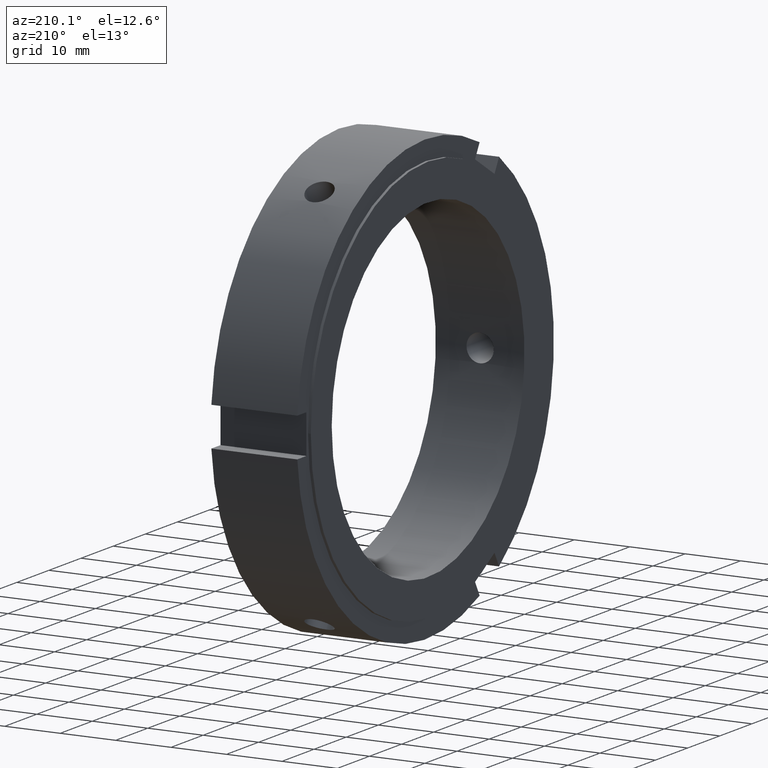
[diagram: clean part render]
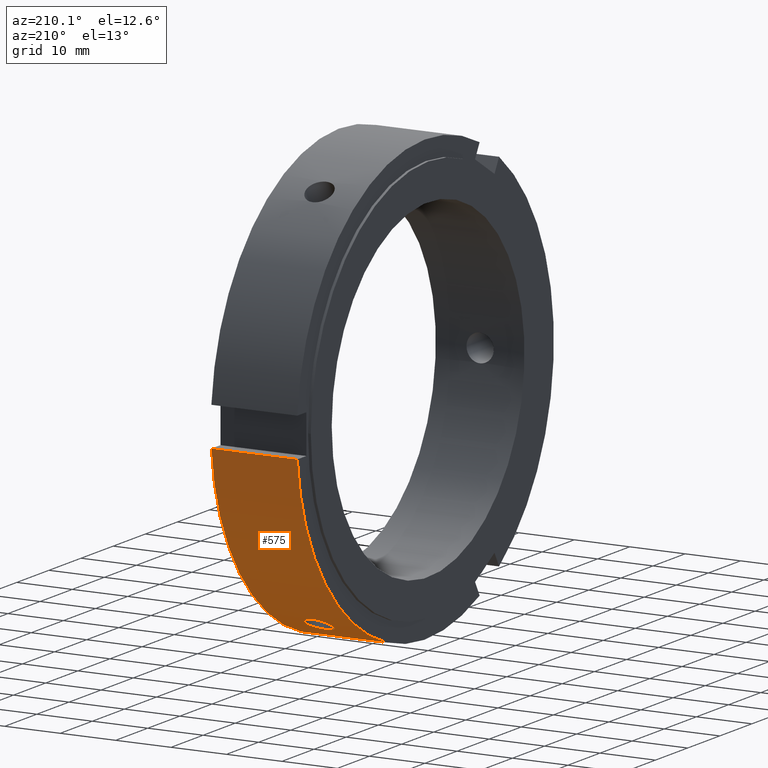
[diagram: same view with one face highlighted and labeled with its STEP entity id]
A machine part, auxiliary view. The second image highlights one B-rep face of the part: STEP entity #575.
In plain terms, the highlighted cylindrical surface (partial cylindrical patch) has radius 40 mm, axis along (1, 0, 0).
Its self-contained STEP definition (entity closure, byte-faithful):
#113=CARTESIAN_POINT('',(0.499999999999989,-16.892201477651263,-36.258151210982007));
#114=VERTEX_POINT('',#113);
#123=CARTESIAN_POINT('',(15.999999999999993,-16.892201477651266,-36.258151210982021));
#124=VERTEX_POINT('',#123);
#125=CARTESIAN_POINT('',(15.999999999999993,-16.892201477651263,-36.258151210982007));
#126=DIRECTION('',(-1.0,0.0,0.0));
#127=VECTOR('',#126,15.500000000000004);
#128=LINE('',#125,#127);
#129=EDGE_CURVE('',#124,#114,#128,.T.);
#365=CARTESIAN_POINT('',(7.999999999999991,17.833064411798404,-35.804773615883249));
#366=VERTEX_POINT('',#365);
#367=CARTESIAN_POINT('',(7.999999999999993,17.833064411798411,-35.804773615883249));
#368=CARTESIAN_POINT('',(8.308778307394176,17.833064411798411,-35.804773615883249));
#369=CARTESIAN_POINT('',(8.638084961426575,17.888495554433270,-35.777332465287543));
#370=CARTESIAN_POINT('',(9.243785509007932,18.112936927948208,-35.664230082129677));
#371=CARTESIAN_POINT('',(9.520186009215443,18.281840500402712,-35.578392670325542));
#372=CARTESIAN_POINT('',(9.956657928490522,18.669329895596249,-35.376600151644723));
#373=CARTESIAN_POINT('',(10.145851499254615,18.913752824163197,-35.247151987386133));
#374=CARTESIAN_POINT('',(10.396774687381194,19.445431053864684,-34.956644293239933));
#375=CARTESIAN_POINT('',(10.458499999999994,19.732590270793867,-34.795405230518639));
#376=CARTESIAN_POINT('',(10.458499999999994,20.267409729206129,-34.486627072236466));
#377=CARTESIAN_POINT('',(10.396774687381193,20.550626462069751,-34.318559426805599));
#378=CARTESIAN_POINT('',(10.145851499254617,21.068052620045950,-34.003366420318073));
#379=CARTESIAN_POINT('',(9.956657928490523,21.302369483050619,-33.856414037040999));
#380=CARTESIAN_POINT('',(9.520186009215447,21.670871628118622,-33.621734636446739));
#381=CARTESIAN_POINT('',(9.243785509007937,21.829660793563367,-33.518378557813264));
#382=CARTESIAN_POINT('',(8.638084961426578,22.039831017364108,-33.380557818267988));
#383=CARTESIAN_POINT('',(8.308778307394174,22.091311322206494,-33.346273615883248));
#384=CARTESIAN_POINT('',(7.691221692605809,22.091311322206494,-33.346273615883248));
#385=CARTESIAN_POINT('',(7.361915038573406,22.039831017364108,-33.380557818267988));
#386=CARTESIAN_POINT('',(6.756214490992046,21.829660793563367,-33.518378557813264));
#387=CARTESIAN_POINT('',(6.479813990784536,21.670871628118622,-33.621734636446739));
#388=CARTESIAN_POINT('',(6.043342071509461,21.302369483050619,-33.856414037040999));
#389=CARTESIAN_POINT('',(5.854148500745366,21.068052620045950,-34.003366420318073));
#390=CARTESIAN_POINT('',(5.603225312618790,20.550626462069751,-34.318559426805599));
#391=CARTESIAN_POINT('',(5.541499999999991,20.267409729206129,-34.486627072236466));
#392=CARTESIAN_POINT('',(5.541499999999991,19.732590270793867,-34.795405230518639));
#393=CARTESIAN_POINT('',(5.603225312618791,19.445431053864684,-34.956644293239926));
#394=CARTESIAN_POINT('',(5.854148500745370,18.913752824163197,-35.247151987386133));
#395=CARTESIAN_POINT('',(6.043342071509461,18.669329895596249,-35.376600151644723));
#396=CARTESIAN_POINT('',(6.479813990784540,18.281840500402716,-35.578392670325549));
#397=CARTESIAN_POINT('',(6.756214490992051,18.112936927948208,-35.664230082129677));
#398=CARTESIAN_POINT('',(7.361915038573409,17.888495554433270,-35.777332465287543));
#399=CARTESIAN_POINT('',(7.691221692605810,17.833064411798411,-35.804773615883249));
#400=CARTESIAN_POINT('',(7.999999999999993,17.833064411798411,-35.804773615883249));
#401=B_SPLINE_CURVE_WITH_KNOTS('',3,(#367,#368,#369,#370,#371,#372,#373,#374,#375,#376,#377,#378,#379,#380,#381,#382,#383,#384,#385,#386,#387,#388,#389,#390,#391,#392,#393,#394,#395,#396,#397,#398,#399,#400),.UNSPECIFIED.,.T.,.U.,(4,2,2,2,2,2,2,2,2,2,2,2,2,2,2,2,4),(0.0,0.092633492218255,0.185266984436510,0.277900431921161,0.370533879405812,0.463167326890463,0.555800774375113,0.648434266593368,0.741067758811623,0.833701251029878,0.926334743248133,1.018968190732784,1.111601638217435,1.204235085702086,1.296868533186736,1.389502025404991,1.482135517623246),.UNSPECIFIED.);
#402=EDGE_CURVE('',#366,#366,#401,.T.);
#456=CARTESIAN_POINT('',(15.999999999999993,39.846580781793563,-3.499999999999999));
#457=VERTEX_POINT('',#456);
#458=CARTESIAN_POINT('',(15.999999999999993,0.0,0.0));
#459=DIRECTION('',(1.0,0.0,0.0));
#460=DIRECTION('',(0.0,1.0,0.0));
#461=AXIS2_PLACEMENT_3D('',#458,#459,#460);
#462=CIRCLE('',#461,40.0);
#463=EDGE_CURVE('',#124,#457,#462,.T.);
#548=CARTESIAN_POINT('',(8.249999999999991,0.0,0.0));
#549=DIRECTION('',(1.0,0.0,0.0));
#550=DIRECTION('',(0.0,1.0,0.0));
#551=AXIS2_PLACEMENT_3D('',#548,#549,#550);
#552=CYLINDRICAL_SURFACE('',#551,40.0);
#553=ORIENTED_EDGE('',*,*,#129,.T.);
#554=CARTESIAN_POINT('',(0.499999999999989,39.846580781793556,-3.499999999999999));
#555=VERTEX_POINT('',#554);
#556=CARTESIAN_POINT('',(0.499999999999989,0.0,0.0));
#557=DIRECTION('',(1.0,0.0,0.0));
#558=DIRECTION('',(0.0,1.0,0.0));
#559=AXIS2_PLACEMENT_3D('',#556,#557,#558);
#560=CIRCLE('',#559,39.999999999999993);
#561=EDGE_CURVE('',#114,#555,#560,.T.);
#562=ORIENTED_EDGE('',*,*,#561,.T.);
#563=CARTESIAN_POINT('',(0.499999999999989,39.846580781793563,-3.499999999999999));
#564=DIRECTION('',(1.0,0.0,0.0));
#565=VECTOR('',#564,15.500000000000004);
#566=LINE('',#563,#565);
#567=EDGE_CURVE('',#555,#457,#566,.T.);
#568=ORIENTED_EDGE('',*,*,#567,.T.);
#569=ORIENTED_EDGE('',*,*,#463,.F.);
#570=EDGE_LOOP('',(#553,#562,#568,#569));
#571=FACE_OUTER_BOUND('',#570,.T.);
#572=ORIENTED_EDGE('',*,*,#402,.T.);
#573=EDGE_LOOP('',(#572));
#574=FACE_BOUND('',#573,.T.);
#575=ADVANCED_FACE('',(#571,#574),#552,.T.);